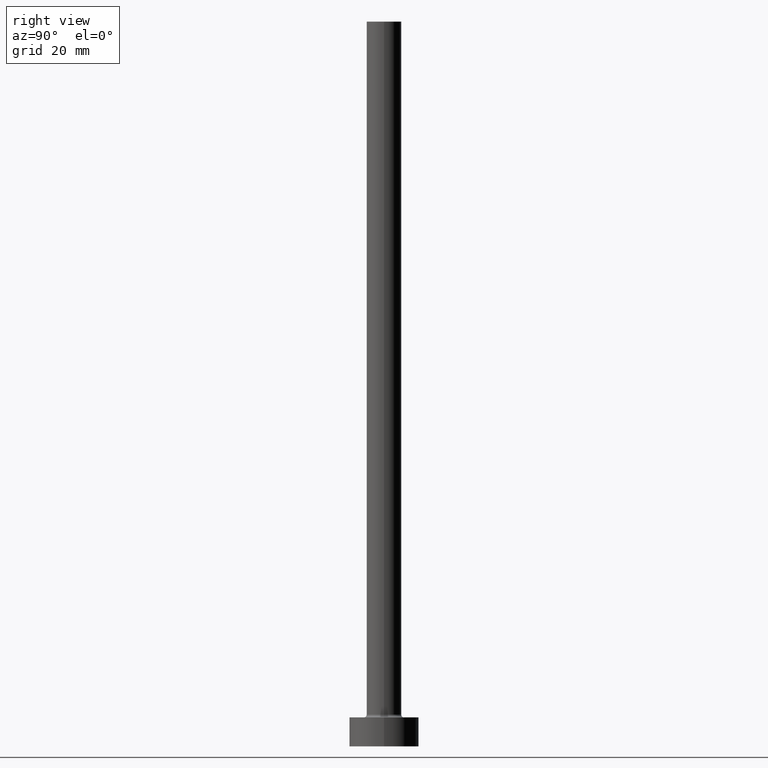
[diagram: clean part render]
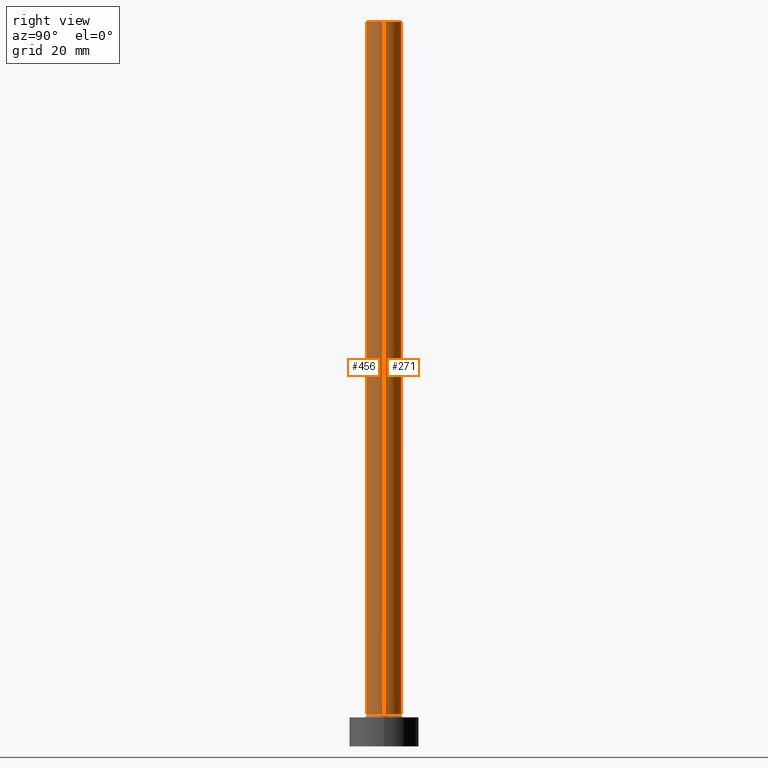
[diagram: same view with one multi-face feature highlighted, each face labeled with its STEP entity id]
A machine part, right view. The highlighted faces form ONE feature: a constant-radius fillet chain: 2 tangent blend faces with common blend radius 3 mm. The faces share edges in the B-rep.
Their STEP definitions:
[1] entity #456 (Cylinder):
#2 = ORIENTED_EDGE ( 'NONE', *, *, #233, .F. ) ;
#8 = ORIENTED_EDGE ( 'NONE', *, *, #61, .T. ) ;
#17 = DIRECTION ( 'NONE',  ( 0.000000000000000000, 0.000000000000000000, 1.000000000000000000 ) ) ;
#28 = VERTEX_POINT ( 'NONE', #333 ) ;
#49 = DIRECTION ( 'NONE',  ( 0.000000000000000000, 0.000000000000000000, 1.000000000000000000 ) ) ;
#51 = DIRECTION ( 'NONE',  ( 1.000000000000000000, 0.000000000000000000, 0.000000000000000000 ) ) ;
#58 = VERTEX_POINT ( 'NONE', #381 ) ;
#61 = EDGE_CURVE ( 'NONE', #28, #58, #131, .T. ) ;
#63 = VERTEX_POINT ( 'NONE', #270 ) ;
#88 = EDGE_CURVE ( 'NONE', #63, #97, #442, .T. ) ;
#97 = VERTEX_POINT ( 'NONE', #192 ) ;
#116 = DIRECTION ( 'NONE',  ( -1.000000000000000000, 0.000000000000000000, 0.000000000000000000 ) ) ;
#131 = CIRCLE ( 'NONE', #317, 3.000000000000000444 ) ;
#158 = DIRECTION ( 'NONE',  ( -0.000000000000000000, -0.000000000000000000, -1.000000000000000000 ) ) ;
#192 = CARTESIAN_POINT ( 'NONE',  ( 3.000000000000000444, 3.673940397442060361E-16, 125.0000000000000000 ) ) ;
#213 = CARTESIAN_POINT ( 'NONE',  ( 0.000000000000000000, 0.000000000000000000, 125.0000000000000000 ) ) ;
#223 = LINE ( 'NONE', #369, #303 ) ;
#225 = EDGE_CURVE ( 'NONE', #63, #28, #398, .T. ) ;
#228 = AXIS2_PLACEMENT_3D ( 'NONE', #213, #324, #116 ) ;
#233 = EDGE_CURVE ( 'NONE', #97, #58, #223, .T. ) ;
#234 = VECTOR ( 'NONE', #158, 1000.000000000000000 ) ;
#239 = ORIENTED_EDGE ( 'NONE', *, *, #88, .F. ) ;
#267 = CARTESIAN_POINT ( 'NONE',  ( -3.000000000000000444, 0.000000000000000000, 125.0000000000000000 ) ) ;
#270 = CARTESIAN_POINT ( 'NONE',  ( -3.000000000000000444, 0.000000000000000000, 125.0000000000000000 ) ) ;
#280 = CARTESIAN_POINT ( 'NONE',  ( 0.000000000000000000, 0.000000000000000000, 5.500000000000005329 ) ) ;
#303 = VECTOR ( 'NONE', #329, 1000.000000000000000 ) ;
#317 = AXIS2_PLACEMENT_3D ( 'NONE', #280, #17, #331 ) ;
#324 = DIRECTION ( 'NONE',  ( -0.000000000000000000, -0.000000000000000000, -1.000000000000000000 ) ) ;
#329 = DIRECTION ( 'NONE',  ( -0.000000000000000000, -0.000000000000000000, -1.000000000000000000 ) ) ;
#331 = DIRECTION ( 'NONE',  ( 1.000000000000000000, 0.000000000000000000, 0.000000000000000000 ) ) ;
#333 = CARTESIAN_POINT ( 'NONE',  ( -3.000000000000000444, 0.000000000000000000, 5.500000000000005329 ) ) ;
#352 = AXIS2_PLACEMENT_3D ( 'NONE', #373, #49, #51 ) ;
#362 = ORIENTED_EDGE ( 'NONE', *, *, #225, .T. ) ;
#367 = FACE_OUTER_BOUND ( 'NONE', #383, .T. ) ;
#369 = CARTESIAN_POINT ( 'NONE',  ( 3.000000000000000444, 3.673940397442060361E-16, 125.0000000000000000 ) ) ;
#373 = CARTESIAN_POINT ( 'NONE',  ( 0.000000000000000000, 0.000000000000000000, 125.0000000000000000 ) ) ;
#381 = CARTESIAN_POINT ( 'NONE',  ( 3.000000000000000444, 3.673940397442060361E-16, 5.500000000000005329 ) ) ;
#383 = EDGE_LOOP ( 'NONE', ( #2, #239, #362, #8 ) ) ;
#390 = CYLINDRICAL_SURFACE ( 'NONE', #228, 3.000000000000000444 ) ;
#398 = LINE ( 'NONE', #267, #234 ) ;
#442 = CIRCLE ( 'NONE', #352, 3.000000000000000444 ) ;
#456 = ADVANCED_FACE ( 'NONE', ( #367 ), #390, .T. ) ;
[2] entity #271 (Cylinder):
#4 = EDGE_LOOP ( 'NONE', ( #455, #388, #269, #357 ) ) ;
#28 = VERTEX_POINT ( 'NONE', #333 ) ;
#58 = VERTEX_POINT ( 'NONE', #381 ) ;
#63 = VERTEX_POINT ( 'NONE', #270 ) ;
#70 = DIRECTION ( 'NONE',  ( 1.000000000000000000, 0.000000000000000000, 0.000000000000000000 ) ) ;
#80 = CYLINDRICAL_SURFACE ( 'NONE', #242, 3.000000000000000444 ) ;
#81 = DIRECTION ( 'NONE',  ( -0.000000000000000000, -0.000000000000000000, -1.000000000000000000 ) ) ;
#97 = VERTEX_POINT ( 'NONE', #192 ) ;
#106 = CARTESIAN_POINT ( 'NONE',  ( 0.000000000000000000, 0.000000000000000000, 5.500000000000005329 ) ) ;
#119 = FACE_OUTER_BOUND ( 'NONE', #4, .T. ) ;
#154 = EDGE_CURVE ( 'NONE', #58, #28, #157, .T. ) ;
#157 = CIRCLE ( 'NONE', #412, 3.000000000000000444 ) ;
#158 = DIRECTION ( 'NONE',  ( -0.000000000000000000, -0.000000000000000000, -1.000000000000000000 ) ) ;
#170 = DIRECTION ( 'NONE',  ( 0.000000000000000000, 0.000000000000000000, 1.000000000000000000 ) ) ;
#190 = CARTESIAN_POINT ( 'NONE',  ( 0.000000000000000000, 0.000000000000000000, 125.0000000000000000 ) ) ;
#192 = CARTESIAN_POINT ( 'NONE',  ( 3.000000000000000444, 3.673940397442060361E-16, 125.0000000000000000 ) ) ;
#223 = LINE ( 'NONE', #369, #303 ) ;
#225 = EDGE_CURVE ( 'NONE', #63, #28, #398, .T. ) ;
#233 = EDGE_CURVE ( 'NONE', #97, #58, #223, .T. ) ;
#234 = VECTOR ( 'NONE', #158, 1000.000000000000000 ) ;
#242 = AXIS2_PLACEMENT_3D ( 'NONE', #190, #81, #301 ) ;
#252 = DIRECTION ( 'NONE',  ( 0.000000000000000000, 0.000000000000000000, 1.000000000000000000 ) ) ;
#267 = CARTESIAN_POINT ( 'NONE',  ( -3.000000000000000444, 0.000000000000000000, 125.0000000000000000 ) ) ;
#269 = ORIENTED_EDGE ( 'NONE', *, *, #154, .T. ) ;
#270 = CARTESIAN_POINT ( 'NONE',  ( -3.000000000000000444, 0.000000000000000000, 125.0000000000000000 ) ) ;
#271 = ADVANCED_FACE ( 'NONE', ( #119 ), #80, .T. ) ;
#301 = DIRECTION ( 'NONE',  ( -1.000000000000000000, 0.000000000000000000, 0.000000000000000000 ) ) ;
#303 = VECTOR ( 'NONE', #329, 1000.000000000000000 ) ;
#312 = EDGE_CURVE ( 'NONE', #97, #63, #345, .T. ) ;
#329 = DIRECTION ( 'NONE',  ( -0.000000000000000000, -0.000000000000000000, -1.000000000000000000 ) ) ;
#333 = CARTESIAN_POINT ( 'NONE',  ( -3.000000000000000444, 0.000000000000000000, 5.500000000000005329 ) ) ;
#345 = CIRCLE ( 'NONE', #376, 3.000000000000000444 ) ;
#357 = ORIENTED_EDGE ( 'NONE', *, *, #225, .F. ) ;
#369 = CARTESIAN_POINT ( 'NONE',  ( 3.000000000000000444, 3.673940397442060361E-16, 125.0000000000000000 ) ) ;
#376 = AXIS2_PLACEMENT_3D ( 'NONE', #417, #170, #419 ) ;
#381 = CARTESIAN_POINT ( 'NONE',  ( 3.000000000000000444, 3.673940397442060361E-16, 5.500000000000005329 ) ) ;
#388 = ORIENTED_EDGE ( 'NONE', *, *, #233, .T. ) ;
#398 = LINE ( 'NONE', #267, #234 ) ;
#412 = AXIS2_PLACEMENT_3D ( 'NONE', #106, #252, #70 ) ;
#417 = CARTESIAN_POINT ( 'NONE',  ( 0.000000000000000000, 0.000000000000000000, 125.0000000000000000 ) ) ;
#419 = DIRECTION ( 'NONE',  ( 1.000000000000000000, 0.000000000000000000, 0.000000000000000000 ) ) ;
#455 = ORIENTED_EDGE ( 'NONE', *, *, #312, .F. ) ;